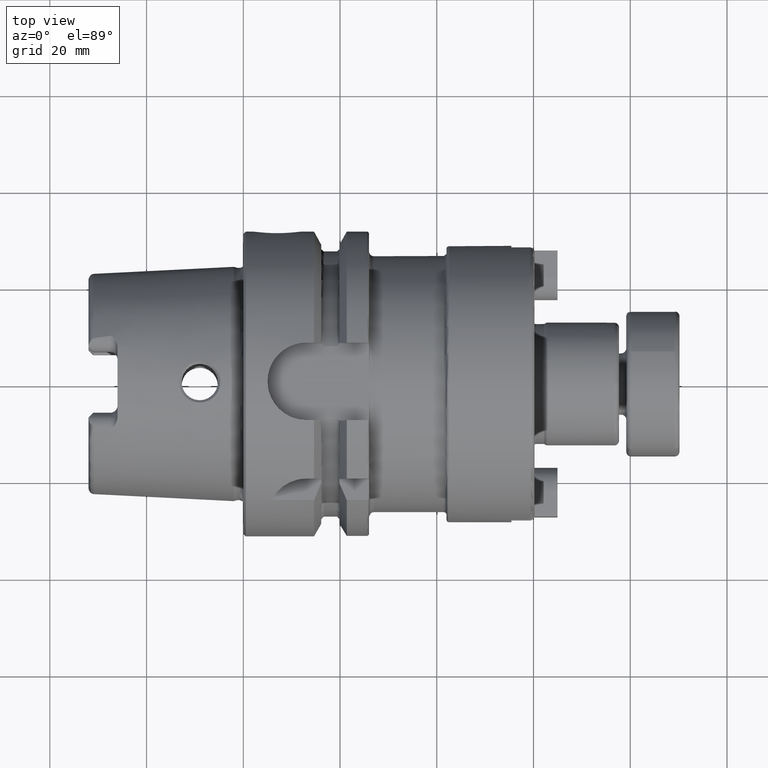
[diagram: clean part render]
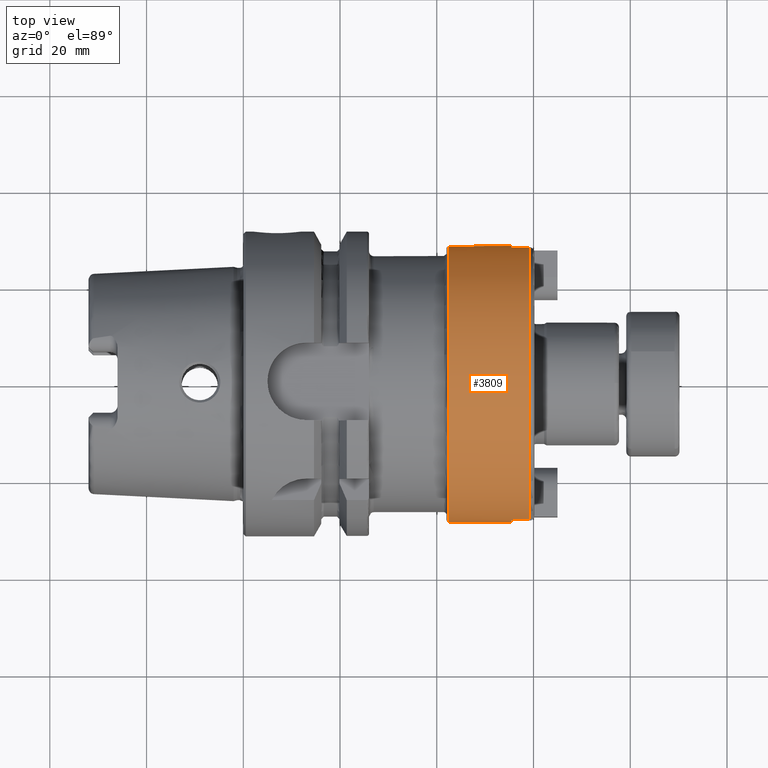
[diagram: same view with one face highlighted and labeled with its STEP entity id]
A machine part, top view. The second image highlights one B-rep face of the part: STEP entity #3809.
In plain terms, the highlighted cylindrical surface (bore or boss wall) has radius 28.575 mm, axis along (1, 0, 0).
Its self-contained STEP definition (entity closure, byte-faithful):
#655=CYLINDRICAL_SURFACE('',#4220,28.575);
#700=CIRCLE('',#4159,28.575);
#701=CIRCLE('',#4160,28.575);
#706=CIRCLE('',#4167,28.575);
#707=CIRCLE('',#4169,28.575);
#711=CIRCLE('',#4179,28.575);
#730=CIRCLE('',#4214,28.575);
#731=CIRCLE('',#4215,28.575);
#998=FACE_OUTER_BOUND('',#1207,.T.);
#1207=EDGE_LOOP('',(#2826,#2827,#2828,#2829,#2830,#2831,#2832,#2833,#2834,
#2835,#2836,#2837,#2838));
#1391=LINE('',#5863,#1592);
#1394=LINE('',#5887,#1595);
#1404=LINE('',#5952,#1605);
#1405=LINE('',#5955,#1606);
#1421=LINE('',#6043,#1622);
#1592=VECTOR('',#4654,10.);
#1595=VECTOR('',#4667,10.);
#1605=VECTOR('',#4717,10.);
#1606=VECTOR('',#4720,10.);
#1622=VECTOR('',#4826,28.575);
#1857=VERTEX_POINT('',#5846);
#1860=VERTEX_POINT('',#5861);
#1864=VERTEX_POINT('',#5874);
#1866=VERTEX_POINT('',#5886);
#1869=VERTEX_POINT('',#5897);
#1875=VERTEX_POINT('',#5913);
#1876=VERTEX_POINT('',#5926);
#1881=VERTEX_POINT('',#5950);
#1882=VERTEX_POINT('',#5954);
#1906=VERTEX_POINT('',#6032);
#1907=VERTEX_POINT('',#6033);
#2189=EDGE_CURVE('',#1857,#1860,#1391,.T.);
#2195=EDGE_CURVE('',#1866,#1864,#1394,.T.);
#2201=EDGE_CURVE('',#1860,#1869,#700,.T.);
#2202=EDGE_CURVE('',#1869,#1866,#701,.T.);
#2209=EDGE_CURVE('',#1857,#1875,#706,.T.);
#2212=EDGE_CURVE('',#1876,#1864,#707,.T.);
#2219=EDGE_CURVE('',#1876,#1881,#1404,.T.);
#2220=EDGE_CURVE('',#1882,#1875,#1405,.T.);
#2224=EDGE_CURVE('',#1881,#1882,#711,.T.);
#2256=EDGE_CURVE('',#1906,#1907,#730,.T.);
#2257=EDGE_CURVE('',#1907,#1906,#731,.T.);
#2261=EDGE_CURVE('',#1869,#1907,#1421,.T.);
#2826=ORIENTED_EDGE('',*,*,#2195,.T.);
#2827=ORIENTED_EDGE('',*,*,#2212,.F.);
#2828=ORIENTED_EDGE('',*,*,#2219,.T.);
#2829=ORIENTED_EDGE('',*,*,#2224,.T.);
#2830=ORIENTED_EDGE('',*,*,#2220,.T.);
#2831=ORIENTED_EDGE('',*,*,#2209,.F.);
#2832=ORIENTED_EDGE('',*,*,#2189,.T.);
#2833=ORIENTED_EDGE('',*,*,#2201,.T.);
#2834=ORIENTED_EDGE('',*,*,#2261,.T.);
#2835=ORIENTED_EDGE('',*,*,#2256,.F.);
#2836=ORIENTED_EDGE('',*,*,#2257,.F.);
#2837=ORIENTED_EDGE('',*,*,#2261,.F.);
#2838=ORIENTED_EDGE('',*,*,#2202,.T.);
#3809=ADVANCED_FACE('',(#998),#655,.T.);
#4159=AXIS2_PLACEMENT_3D('',#5898,#4679,#4680);
#4160=AXIS2_PLACEMENT_3D('',#5899,#4681,#4682);
#4167=AXIS2_PLACEMENT_3D('',#5914,#4697,#4698);
#4169=AXIS2_PLACEMENT_3D('',#5937,#4701,#4702);
#4179=AXIS2_PLACEMENT_3D('',#5962,#4729,#4730);
#4214=AXIS2_PLACEMENT_3D('',#6034,#4812,#4813);
#4215=AXIS2_PLACEMENT_3D('',#6035,#4814,#4815);
#4220=AXIS2_PLACEMENT_3D('',#6042,#4824,#4825);
#4654=DIRECTION('',(-1.,0.,0.));
#4667=DIRECTION('',(1.,0.,0.));
#4679=DIRECTION('center_axis',(-1.,0.,0.));
#4680=DIRECTION('ref_axis',(0.,1.,0.));
#4681=DIRECTION('center_axis',(-1.,0.,0.));
#4682=DIRECTION('ref_axis',(0.,1.,0.));
#4697=DIRECTION('center_axis',(1.,0.,0.));
#4698=DIRECTION('ref_axis',(0.,-1.,1.83697019872103E-16));
#4701=DIRECTION('center_axis',(1.,0.,0.));
#4702=DIRECTION('ref_axis',(0.,-1.,1.83697019872103E-16));
#4717=DIRECTION('',(-1.,0.,0.));
#4720=DIRECTION('',(1.,0.,0.));
#4729=DIRECTION('center_axis',(-1.,0.,0.));
#4730=DIRECTION('ref_axis',(0.,1.,0.));
#4812=DIRECTION('center_axis',(-1.,0.,0.));
#4813=DIRECTION('ref_axis',(0.,-1.,1.83697019872103E-16));
#4814=DIRECTION('center_axis',(-1.,0.,0.));
#4815=DIRECTION('ref_axis',(0.,-1.,1.83697019872103E-16));
#4824=DIRECTION('center_axis',(1.,0.,0.));
#4825=DIRECTION('ref_axis',(0.,1.,0.));
#4826=DIRECTION('',(-1.,0.,0.));
#5846=CARTESIAN_POINT('',(59.2,-28.1757524300594,-4.76));
#5861=CARTESIAN_POINT('',(55.43,-28.1757524300594,-4.76));
#5863=CARTESIAN_POINT('',(51.1,-28.1757524300594,-4.76));
#5874=CARTESIAN_POINT('',(59.2,-28.1757524300594,4.76));
#5886=CARTESIAN_POINT('',(55.43,-28.1757524300594,4.76));
#5887=CARTESIAN_POINT('',(51.1,-28.1757524300594,4.76));
#5897=CARTESIAN_POINT('',(55.43,-28.575,-3.49942822856356E-15));
#5898=CARTESIAN_POINT('Origin',(55.43,0.,0.));
#5899=CARTESIAN_POINT('Origin',(55.43,0.,0.));
#5913=CARTESIAN_POINT('',(59.2,28.1757524300594,-4.76));
#5914=CARTESIAN_POINT('Origin',(59.2,0.,0.));
#5926=CARTESIAN_POINT('',(59.2,28.1757524300594,4.76));
#5937=CARTESIAN_POINT('Origin',(59.2,0.,0.));
#5950=CARTESIAN_POINT('',(55.43,28.1757524300594,4.76));
#5952=CARTESIAN_POINT('',(51.1,28.1757524300594,4.76));
#5954=CARTESIAN_POINT('',(55.43,28.1757524300594,-4.76));
#5955=CARTESIAN_POINT('',(51.1,28.1757524300594,-4.76));
#5962=CARTESIAN_POINT('Origin',(55.43,0.,0.));
#6032=CARTESIAN_POINT('',(42.5,-3.49942822856356E-15,28.575));
#6033=CARTESIAN_POINT('',(42.5,-28.575,-3.49942822856356E-15));
#6034=CARTESIAN_POINT('Origin',(42.5,0.,0.));
#6035=CARTESIAN_POINT('Origin',(42.5,0.,0.));
#6042=CARTESIAN_POINT('Origin',(51.1,0.,0.));
#6043=CARTESIAN_POINT('',(51.1,-28.575,-3.49942822856356E-15));